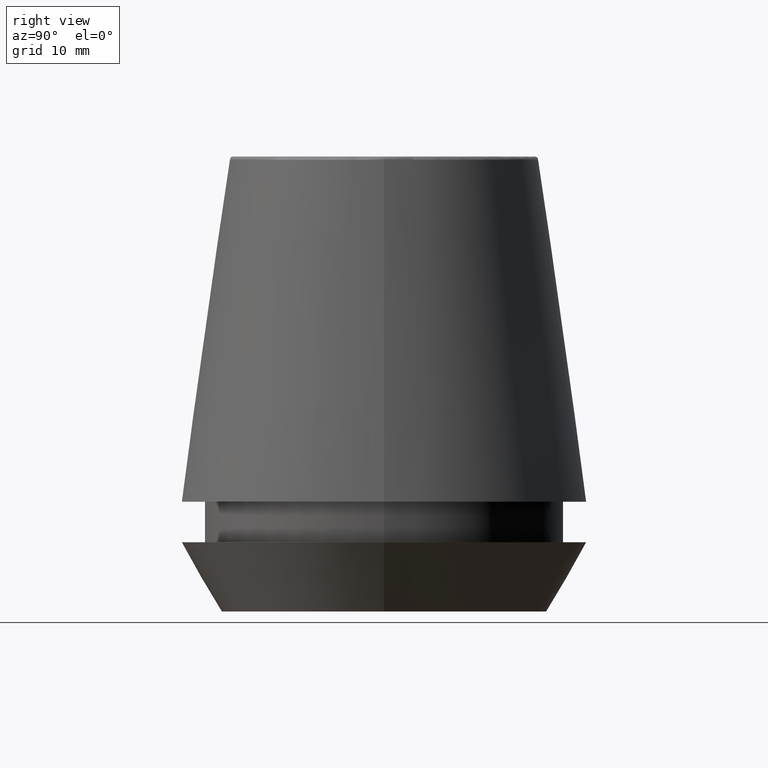
[diagram: clean part render]
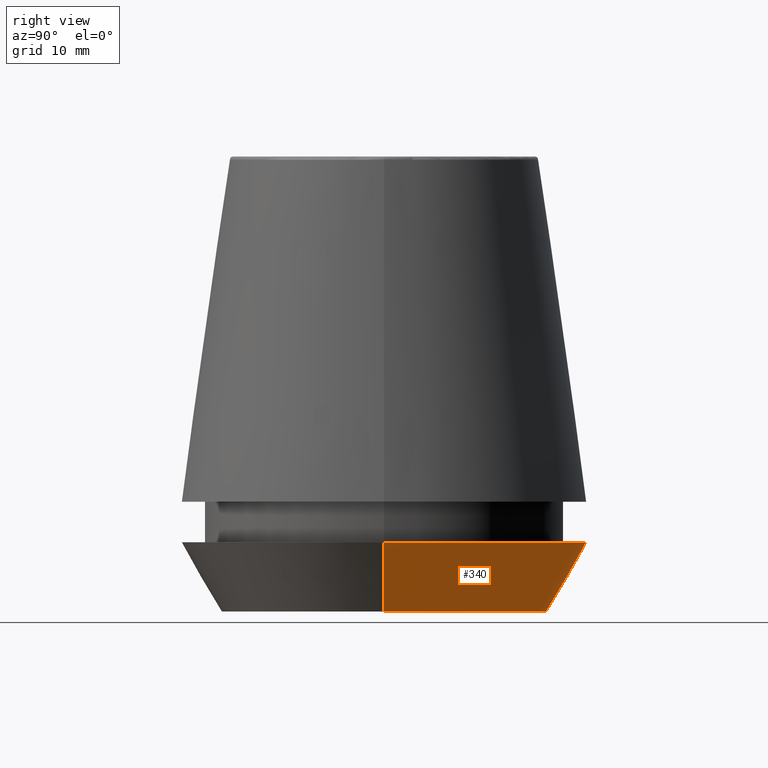
[diagram: same view with one face highlighted and labeled with its STEP entity id]
A machine part, right view. The second image highlights one B-rep face of the part: STEP entity #340.
In plain terms, the highlighted conical surface has half-angle 30 deg.
Its self-contained STEP definition (entity closure, byte-faithful):
#15 = CARTESIAN_POINT ( 'NONE',  ( 0.0000000000000000000, 0.0000000000000000000, 7.000000000000006200 ) ) ;
#31 = VERTEX_POINT ( 'NONE', #179 ) ;
#54 = CARTESIAN_POINT ( 'NONE',  ( -16.45854811567268100, 2.015590826847124800E-015, 0.0000000000000000000 ) ) ;
#56 = DIRECTION ( 'NONE',  ( 0.4999999999999941700, 0.0000000000000000000, 0.8660254037844420400 ) ) ;
#67 = EDGE_LOOP ( 'NONE', ( #157, #73, #118, #85 ) ) ;
#69 = EDGE_CURVE ( 'NONE', #31, #142, #163, .T. ) ;
#73 = ORIENTED_EDGE ( 'NONE', *, *, #298, .T. ) ;
#85 = ORIENTED_EDGE ( 'NONE', *, *, #318, .F. ) ;
#102 = VECTOR ( 'NONE', #56, 1000.000000000000000 ) ;
#118 = ORIENTED_EDGE ( 'NONE', *, *, #69, .F. ) ;
#124 = CARTESIAN_POINT ( 'NONE',  ( -20.50000000000000000, 2.510525938252074100E-015, 7.000000000000006200 ) ) ;
#131 = CARTESIAN_POINT ( 'NONE',  ( 0.0000000000000000000, 0.0000000000000000000, 0.0000000000000000000 ) ) ;
#138 = VERTEX_POINT ( 'NONE', #238 ) ;
#142 = VERTEX_POINT ( 'NONE', #124 ) ;
#157 = ORIENTED_EDGE ( 'NONE', *, *, #161, .T. ) ;
#160 = CARTESIAN_POINT ( 'NONE',  ( 0.0000000000000000000, 0.0000000000000000000, 0.0000000000000000000 ) ) ;
#161 = EDGE_CURVE ( 'NONE', #217, #138, #301, .T. ) ;
#163 = CIRCLE ( 'NONE', #328, 20.50000000000000000 ) ;
#179 = CARTESIAN_POINT ( 'NONE',  ( 20.50000000000000000, 0.0000000000000000000, 7.000000000000006200 ) ) ;
#180 = FACE_OUTER_BOUND ( 'NONE', #67, .T. ) ;
#191 = AXIS2_PLACEMENT_3D ( 'NONE', #160, #214, #350 ) ;
#208 = DIRECTION ( 'NONE',  ( -0.0000000000000000000, -0.0000000000000000000, 1.000000000000000000 ) ) ;
#212 = LINE ( 'NONE', #244, #102 ) ;
#214 = DIRECTION ( 'NONE',  ( -0.0000000000000000000, -0.0000000000000000000, 1.000000000000000000 ) ) ;
#216 = DIRECTION ( 'NONE',  ( -0.4999999999999941700, 6.123233995736694500E-017, 0.8660254037844420400 ) ) ;
#217 = VERTEX_POINT ( 'NONE', #351 ) ;
#221 = LINE ( 'NONE', #54, #361 ) ;
#238 = CARTESIAN_POINT ( 'NONE',  ( -16.45854811567268100, 2.263058382549599700E-015, 0.0000000000000000000 ) ) ;
#244 = CARTESIAN_POINT ( 'NONE',  ( 16.45854811567268100, 0.0000000000000000000, 0.0000000000000000000 ) ) ;
#262 = DIRECTION ( 'NONE',  ( 1.000000000000000000, 0.0000000000000000000, 0.0000000000000000000 ) ) ;
#265 = DIRECTION ( 'NONE',  ( -0.0000000000000000000, -0.0000000000000000000, 1.000000000000000000 ) ) ;
#278 = CONICAL_SURFACE ( 'NONE', #337, 16.45854811567268100, 0.5235987755982921500 ) ;
#298 = EDGE_CURVE ( 'NONE', #138, #142, #221, .T. ) ;
#301 = CIRCLE ( 'NONE', #191, 16.45854811567268100 ) ;
#318 = EDGE_CURVE ( 'NONE', #217, #31, #212, .T. ) ;
#328 = AXIS2_PLACEMENT_3D ( 'NONE', #15, #208, #379 ) ;
#337 = AXIS2_PLACEMENT_3D ( 'NONE', #131, #265, #262 ) ;
#340 = ADVANCED_FACE ( 'NONE', ( #180 ), #278, .T. ) ;
#350 = DIRECTION ( 'NONE',  ( 1.000000000000000000, 0.0000000000000000000, 0.0000000000000000000 ) ) ;
#351 = CARTESIAN_POINT ( 'NONE',  ( 16.45854811567268100, 0.0000000000000000000, 0.0000000000000000000 ) ) ;
#361 = VECTOR ( 'NONE', #216, 1000.000000000000000 ) ;
#379 = DIRECTION ( 'NONE',  ( 1.000000000000000000, 0.0000000000000000000, 0.0000000000000000000 ) ) ;